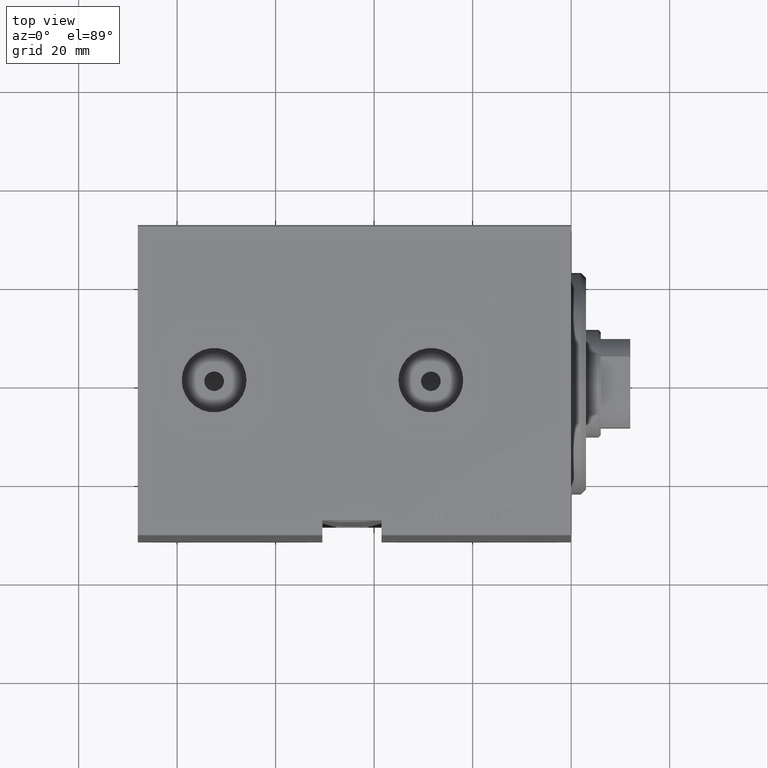
[diagram: clean part render]
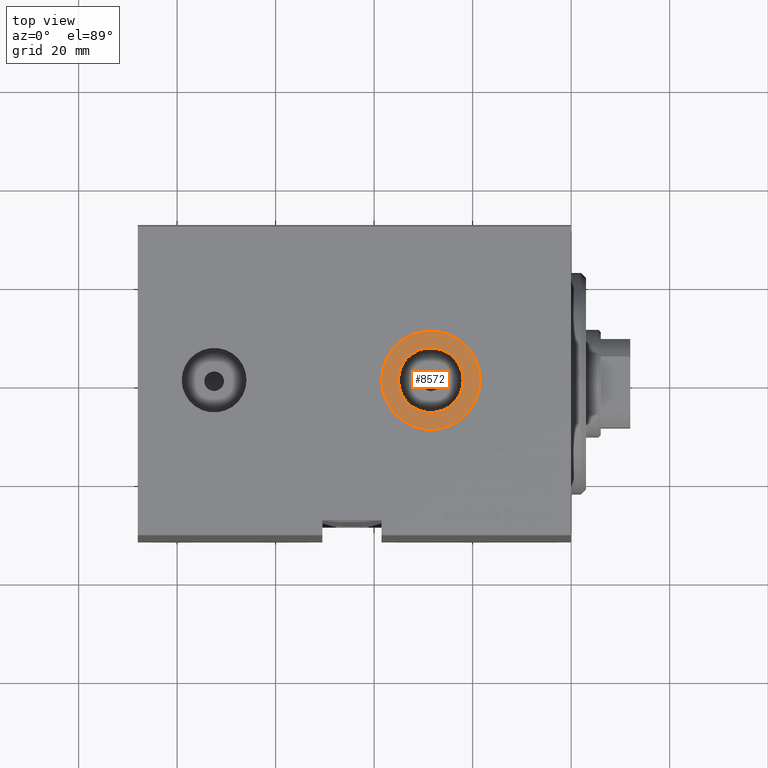
[diagram: same view with one face highlighted and labeled with its STEP entity id]
A machine part, top view. The second image highlights one B-rep face of the part: STEP entity #8572.
In plain terms, the highlighted planar face has unit normal (0, 0, 1).
Its self-contained STEP definition (entity closure, byte-faithful):
#335 = EDGE_CURVE ( 'NONE', #40638, #2846, #9886, .T. ) ;
#1507 = CIRCLE ( 'NONE', #14258, 6.579999999999999183 ) ;
#2846 = VERTEX_POINT ( 'NONE', #30566 ) ;
#4080 = CARTESIAN_POINT ( 'NONE',  ( 21.92000000000000171, -8.556182117781905894E-15, 42.39999999999999147 ) ) ;
#4889 = EDGE_CURVE ( 'NONE', #2846, #40638, #7042, .T. ) ;
#7042 = CIRCLE ( 'NONE', #29775, 10.00000000000000533 ) ;
#7240 = VERTEX_POINT ( 'NONE', #4080 ) ;
#7252 = DIRECTION ( 'NONE',  ( 1.000000000000000000, 0.000000000000000000, 0.000000000000000000 ) ) ;
#8572 = ADVANCED_FACE ( 'NONE', ( #38993, #43209 ), #12922, .T. ) ;
#8896 = DIRECTION ( 'NONE',  ( 0.000000000000000000, 0.000000000000000000, 1.000000000000000000 ) ) ;
#9886 = CIRCLE ( 'NONE', #42601, 10.00000000000000533 ) ;
#9940 = EDGE_CURVE ( 'NONE', #13334, #7240, #1507, .T. ) ;
#10383 = ORIENTED_EDGE ( 'NONE', *, *, #335, .T. ) ;
#11079 = DIRECTION ( 'NONE',  ( 1.000000000000000000, 0.000000000000000000, 0.000000000000000000 ) ) ;
#11307 = ORIENTED_EDGE ( 'NONE', *, *, #4889, .T. ) ;
#11565 = AXIS2_PLACEMENT_3D ( 'NONE', #38113, #27849, #35209 ) ;
#12266 = ORIENTED_EDGE ( 'NONE', *, *, #18611, .F. ) ;
#12474 = CARTESIAN_POINT ( 'NONE',  ( 28.50000000000000000, -9.361999711620863359E-15, 42.39999999999999147 ) ) ;
#12922 = PLANE ( 'NONE',  #19218 ) ;
#13334 = VERTEX_POINT ( 'NONE', #38309 ) ;
#14258 = AXIS2_PLACEMENT_3D ( 'NONE', #23712, #27280, #7252 ) ;
#14415 = CARTESIAN_POINT ( 'NONE',  ( 28.50000000000000000, -9.361999711620863359E-15, 42.39999999999999147 ) ) ;
#14948 = ORIENTED_EDGE ( 'NONE', *, *, #9940, .F. ) ;
#18611 = EDGE_CURVE ( 'NONE', #7240, #13334, #22191, .T. ) ;
#19218 = AXIS2_PLACEMENT_3D ( 'NONE', #12474, #36303, #36522 ) ;
#22191 = CIRCLE ( 'NONE', #11565, 6.579999999999999183 ) ;
#23294 = EDGE_LOOP ( 'NONE', ( #14948, #12266 ) ) ;
#23712 = CARTESIAN_POINT ( 'NONE',  ( 28.50000000000000000, -9.361999711620863359E-15, 42.39999999999999147 ) ) ;
#27280 = DIRECTION ( 'NONE',  ( 0.000000000000000000, 0.000000000000000000, 1.000000000000000000 ) ) ;
#27849 = DIRECTION ( 'NONE',  ( 0.000000000000000000, 0.000000000000000000, 1.000000000000000000 ) ) ;
#28218 = DIRECTION ( 'NONE',  ( 0.000000000000000000, 0.000000000000000000, 1.000000000000000000 ) ) ;
#29775 = AXIS2_PLACEMENT_3D ( 'NONE', #14415, #28218, #11079 ) ;
#30566 = CARTESIAN_POINT ( 'NONE',  ( 18.49999999999999645, -8.137352912473508722E-15, 42.39999999999999147 ) ) ;
#30725 = CARTESIAN_POINT ( 'NONE',  ( 38.50000000000000711, -9.361999711620863359E-15, 42.39999999999999147 ) ) ;
#35209 = DIRECTION ( 'NONE',  ( 1.000000000000000000, 0.000000000000000000, 0.000000000000000000 ) ) ;
#36303 = DIRECTION ( 'NONE',  ( 0.000000000000000000, 0.000000000000000000, 1.000000000000000000 ) ) ;
#36522 = DIRECTION ( 'NONE',  ( 1.000000000000000000, 0.000000000000000000, -0.000000000000000000 ) ) ;
#38113 = CARTESIAN_POINT ( 'NONE',  ( 28.50000000000000000, -9.361999711620863359E-15, 42.39999999999999147 ) ) ;
#38309 = CARTESIAN_POINT ( 'NONE',  ( 35.07999999999999829, -9.361999711620863359E-15, 42.39999999999999147 ) ) ;
#38993 = FACE_BOUND ( 'NONE', #23294, .T. ) ;
#39420 = CARTESIAN_POINT ( 'NONE',  ( 28.50000000000000000, -9.361999711620863359E-15, 42.39999999999999147 ) ) ;
#40638 = VERTEX_POINT ( 'NONE', #30725 ) ;
#40713 = DIRECTION ( 'NONE',  ( 1.000000000000000000, 0.000000000000000000, 0.000000000000000000 ) ) ;
#41352 = EDGE_LOOP ( 'NONE', ( #10383, #11307 ) ) ;
#42601 = AXIS2_PLACEMENT_3D ( 'NONE', #39420, #8896, #40713 ) ;
#43209 = FACE_OUTER_BOUND ( 'NONE', #41352, .T. ) ;